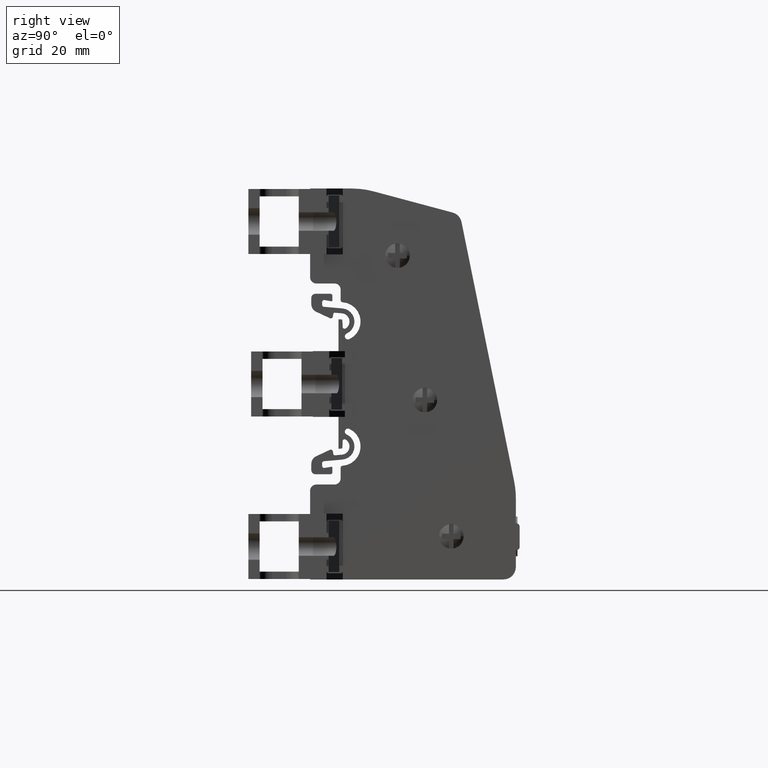
[diagram: clean part render]
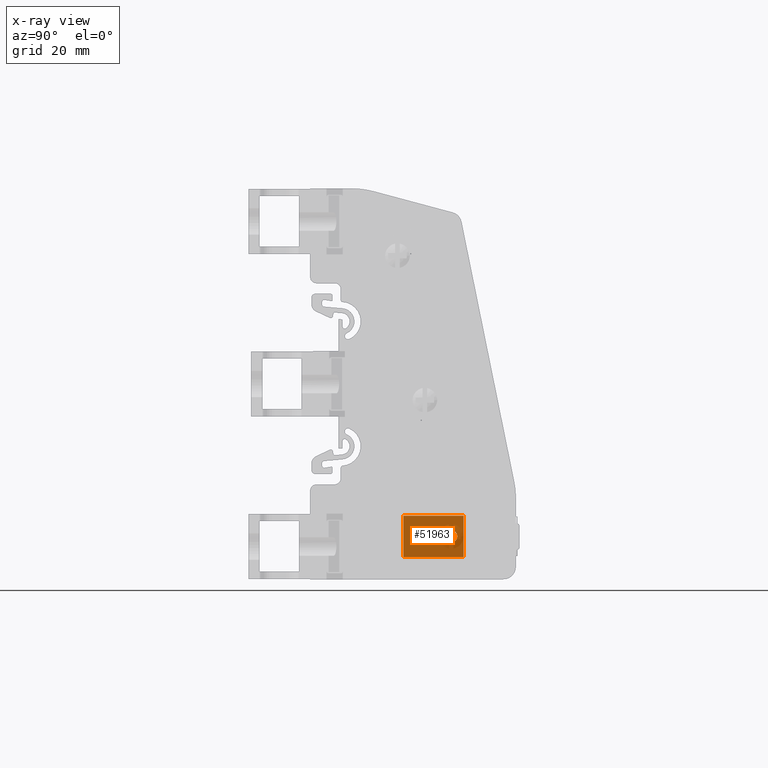
[diagram: x-ray — body ghosted, one internal face saturated and labeled with its STEP entity id]
A machine part, right view, then the same camera in x-ray: the body is ghosted and one INTERNAL B-rep face — a face not visible from any outside direction — is saturated and labeled: STEP entity #51963.
In plain terms, the highlighted planar face has unit normal (1, -0, 0).
Its self-contained STEP definition (entity closure, byte-faithful):
#196 = VECTOR ( 'NONE', #39675, 1000.000000000000000 ) ;
#6011 = LINE ( 'NONE', #6055, #49749 ) ;
#6055 = CARTESIAN_POINT ( 'NONE',  ( -57.26994303252715200, 261.7796993914157000, -28.86765911291454100 ) ) ;
#6109 = DIRECTION ( 'NONE',  ( -0.0000000000000000000, -1.000000000000000000, -0.0000000000000000000 ) ) ;
#6438 = LINE ( 'NONE', #6462, #49719 ) ;
#6462 = CARTESIAN_POINT ( 'NONE',  ( -57.26994303252715200, 261.7796993914157000, -38.86765911291453800 ) ) ;
#6489 = DIRECTION ( 'NONE',  ( 0.0000000000000000000, 1.000000000000000000, 0.0000000000000000000 ) ) ;
#7135 = CARTESIAN_POINT ( 'NONE',  ( -57.26994303252715200, 273.7796993914179800, -33.86765911292272300 ) ) ;
#7152 = DIRECTION ( 'NONE',  ( -1.000000000000000000, -6.753906400332736800E-015, -1.722328977353829100E-015 ) ) ;
#7164 = DIRECTION ( 'NONE',  ( -4.704334850106582600E-015, 1.000000000000000000, 0.0000000000000000000 ) ) ;
#7294 = CARTESIAN_POINT ( 'NONE',  ( -57.26994303252715900, 262.1967329948752800, -28.77056782734841500 ) ) ;
#7302 = DIRECTION ( 'NONE',  ( -0.0000000000000000000, -1.369709172440824000E-013, 1.000000000000000000 ) ) ;
#7306 = LINE ( 'NONE', #7294, #49978 ) ;
#9645 = EDGE_CURVE ( 'NONE', #31314, #31429, #23943, .T. ) ;
#23943 = CIRCLE ( 'NONE', #23954, 1.475000000000004100 ) ;
#23954 = AXIS2_PLACEMENT_3D ( 'NONE', #75178, #75169, #75173 ) ;
#31092 = ORIENTED_EDGE ( 'NONE', *, *, #70632, .F. ) ;
#31110 = ORIENTED_EDGE ( 'NONE', *, *, #9645, .F. ) ;
#31143 = ORIENTED_EDGE ( 'NONE', *, *, #70500, .F. ) ;
#31179 = ORIENTED_EDGE ( 'NONE', *, *, #79278, .F. ) ;
#31203 = ORIENTED_EDGE ( 'NONE', *, *, #70542, .F. ) ;
#31254 = ORIENTED_EDGE ( 'NONE', *, *, #70681, .T. ) ;
#31314 = VERTEX_POINT ( 'NONE', #64136 ) ;
#31429 = VERTEX_POINT ( 'NONE', #61537 ) ;
#35043 = CARTESIAN_POINT ( 'NONE',  ( -57.26994303252715200, 261.7796993914157000, -28.86765911291454100 ) ) ;
#35051 = FACE_BOUND ( 'NONE', #96711, .T. ) ;
#35059 = PLANE ( 'NONE',  #41406 ) ;
#35064 = DIRECTION ( 'NONE',  ( 1.000000000000000000, -0.0000000000000000000, 0.0000000000000000000 ) ) ;
#35082 = DIRECTION ( 'NONE',  ( 0.0000000000000000000, 0.0000000000000000000, -1.000000000000000000 ) ) ;
#35087 = FACE_OUTER_BOUND ( 'NONE', #96839, .T. ) ;
#39659 = CARTESIAN_POINT ( 'NONE',  ( -57.26994303252715200, 276.7796993914157000, -28.86765911291454100 ) ) ;
#39675 = DIRECTION ( 'NONE',  ( -0.0000000000000000000, -0.0000000000000000000, 1.000000000000000000 ) ) ;
#39704 = LINE ( 'NONE', #39659, #196 ) ;
#41406 = AXIS2_PLACEMENT_3D ( 'NONE', #35043, #35064, #35082 ) ;
#44458 = CARTESIAN_POINT ( 'NONE',  ( -57.26994303252715200, 262.1967329948761300, -38.86765911291453800 ) ) ;
#44984 = CARTESIAN_POINT ( 'NONE',  ( -57.26994303252715200, 262.1967329948755600, -28.86765911291454100 ) ) ;
#45463 = CARTESIAN_POINT ( 'NONE',  ( -57.26994303252715200, 276.7796993914157000, -38.86765911291453800 ) ) ;
#45475 = CARTESIAN_POINT ( 'NONE',  ( -57.26994303252715200, 276.7796993914157000, -28.86765911291454100 ) ) ;
#49719 = VECTOR ( 'NONE', #6489, 1000.000000000000000 ) ;
#49749 = VECTOR ( 'NONE', #6109, 1000.000000000000000 ) ;
#49917 = CIRCLE ( 'NONE', #49922, 1.475000000000004100 ) ;
#49922 = AXIS2_PLACEMENT_3D ( 'NONE', #7135, #7152, #7164 ) ;
#49978 = VECTOR ( 'NONE', #7302, 1000.000000000000000 ) ;
#51963 = ADVANCED_FACE ( 'NONE', ( #35051, #35087 ), #35059, .F. ) ;
#61537 = CARTESIAN_POINT ( 'NONE',  ( -57.26994303252715900, 275.2546993914180000, -33.86765911292272300 ) ) ;
#64136 = CARTESIAN_POINT ( 'NONE',  ( -57.26994303252714500, 272.3046993914180100, -33.86765911292272300 ) ) ;
#70500 = EDGE_CURVE ( 'NONE', #83272, #83610, #6011, .T. ) ;
#70542 = EDGE_CURVE ( 'NONE', #83654, #83292, #6438, .T. ) ;
#70632 = EDGE_CURVE ( 'NONE', #31429, #31314, #49917, .T. ) ;
#70681 = EDGE_CURVE ( 'NONE', #83654, #83610, #7306, .T. ) ;
#75169 = DIRECTION ( 'NONE',  ( -1.000000000000000000, -6.753906400332736800E-015, -1.722328977353829100E-015 ) ) ;
#75173 = DIRECTION ( 'NONE',  ( -4.704334850106582600E-015, 1.000000000000000000, 0.0000000000000000000 ) ) ;
#75178 = CARTESIAN_POINT ( 'NONE',  ( -57.26994303252715200, 273.7796993914179800, -33.86765911292272300 ) ) ;
#79278 = EDGE_CURVE ( 'NONE', #83292, #83272, #39704, .T. ) ;
#83272 = VERTEX_POINT ( 'NONE', #45475 ) ;
#83292 = VERTEX_POINT ( 'NONE', #45463 ) ;
#83610 = VERTEX_POINT ( 'NONE', #44984 ) ;
#83654 = VERTEX_POINT ( 'NONE', #44458 ) ;
#96711 = EDGE_LOOP ( 'NONE', ( #31092, #31110 ) ) ;
#96839 = EDGE_LOOP ( 'NONE', ( #31143, #31179, #31203, #31254 ) ) ;